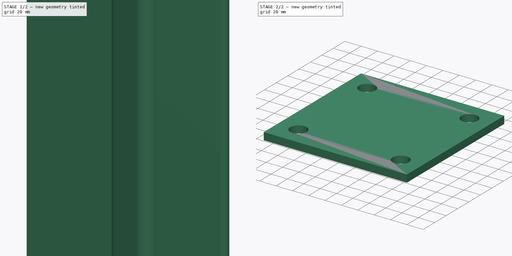
[diagram: build sequence overview — one tinted view per stage of 2, left to right]
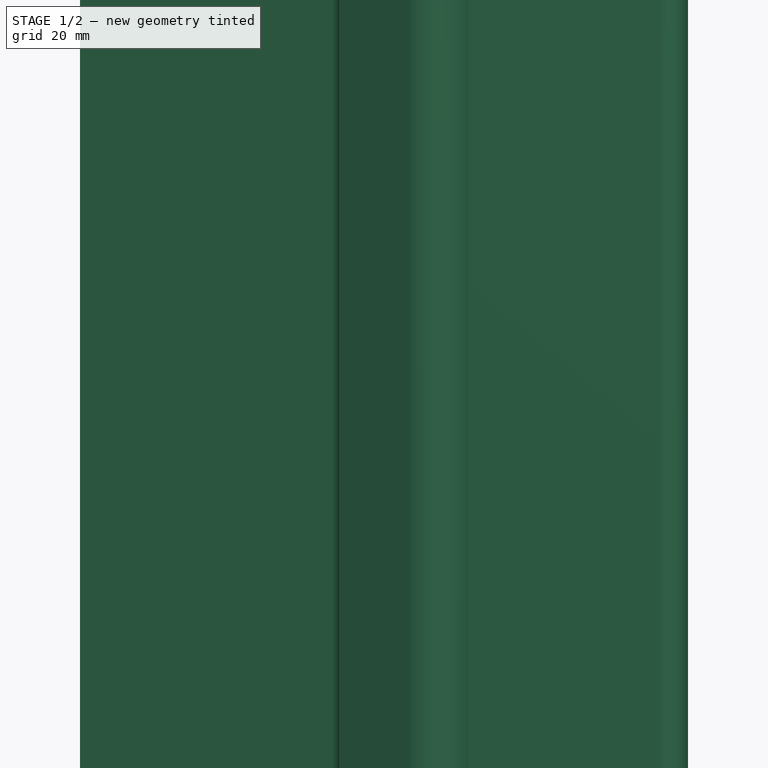
[diagram: stage 1 of 2 — iso view after this stage's code; geometry added in this stage tinted green]
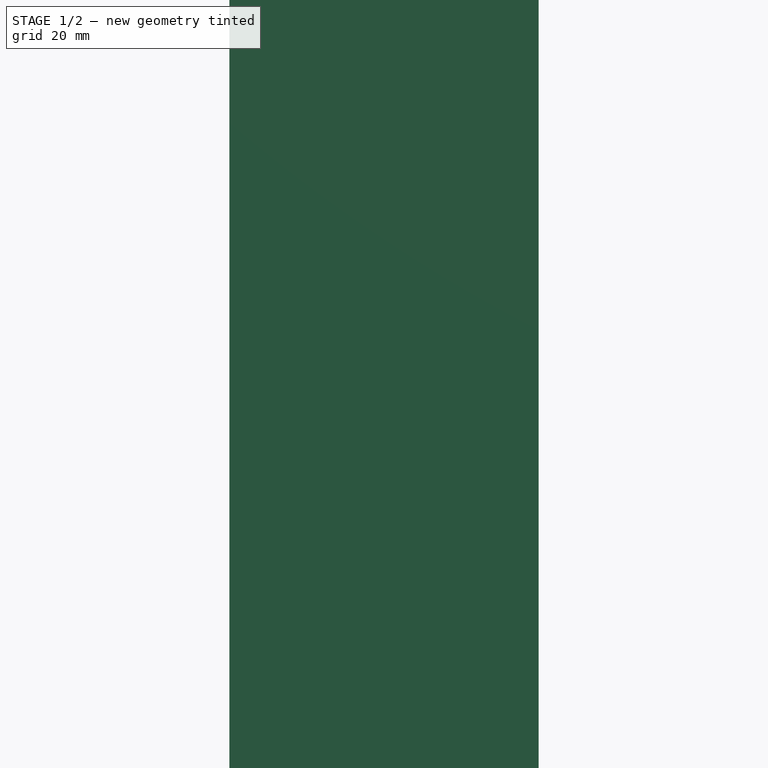
[diagram: stage 1 of 2 — front view after this stage's code; geometry added in this stage tinted green]
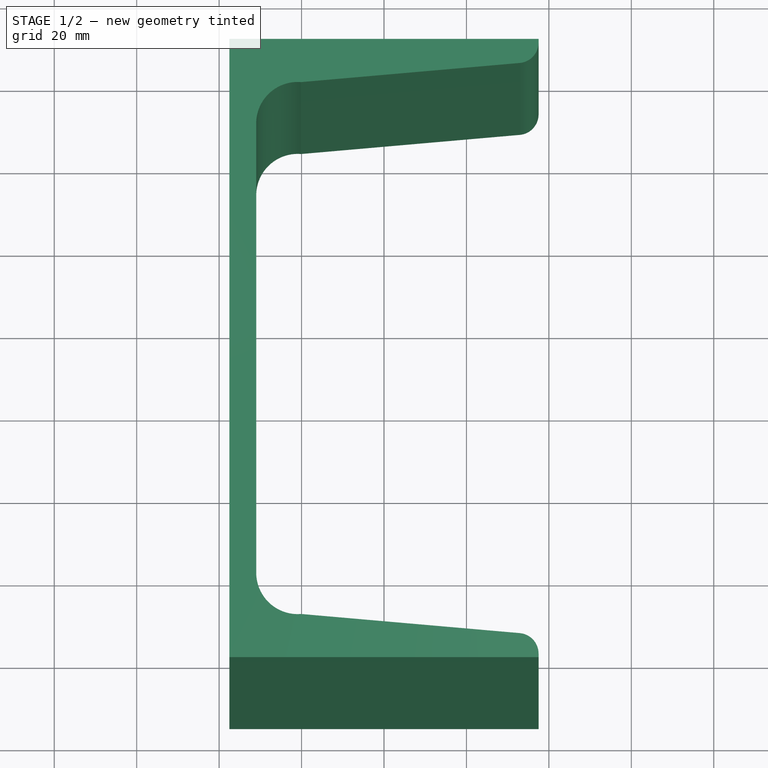
[diagram: stage 1 of 2 — top view after this stage's code; geometry added in this stage tinted green]
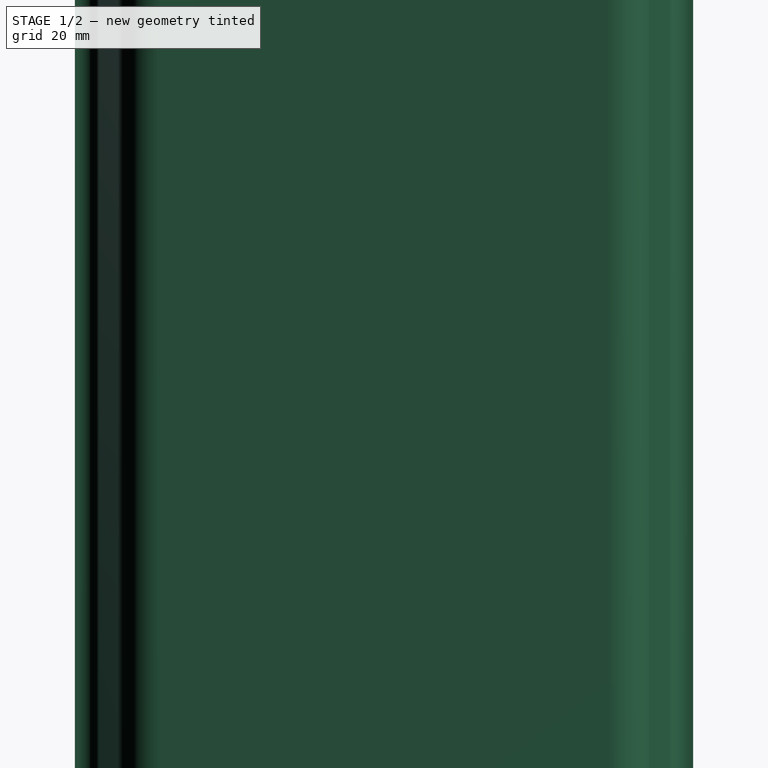
[diagram: stage 1 of 2 — right view after this stage's code; geometry added in this stage tinted green]
FCSTD DOCUMENT  (FreeCAD 1.0R39319 (Git))
Label: 03_Pst_C
License: All rights reserved
objects: Part::FeaturePython×1, Sketcher::SketchObject×1, PartDesign::Pad×1, App::Part×1
note: 6 computed .brp shape members not serialized (recipe doc carries the construction recipe); baked Part::Feature solids carry a one-line shape summary decoded from their .brp

FEATURE [Part::FeaturePython] ChannelSteel  # WARN: FeaturePython — macro-defined, semantics opaque (R4)
  B = 75
  H = 150
  L = 1000
  Placement = pos=(0,0,0) rot=(1,0,0;1.5708rad)
  Solid = true
  g0 = 7.85
  mass = 16.9049
  size = 3
  standard = SS
  t1 = 6.5
  t2 = 10
  type = 01_Channel
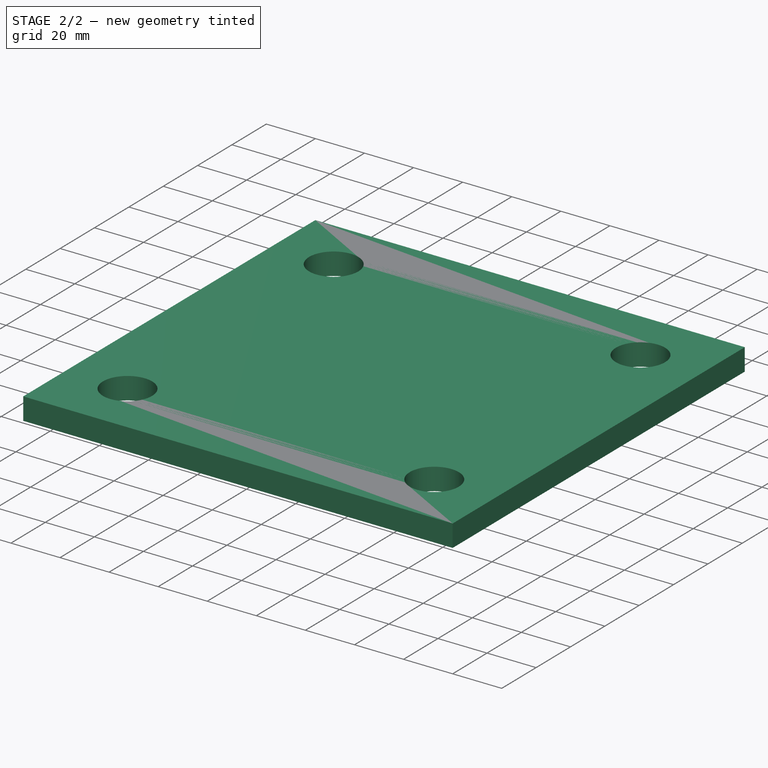
[diagram: stage 2 of 2 — iso view after this stage's code; geometry added in this stage tinted green]
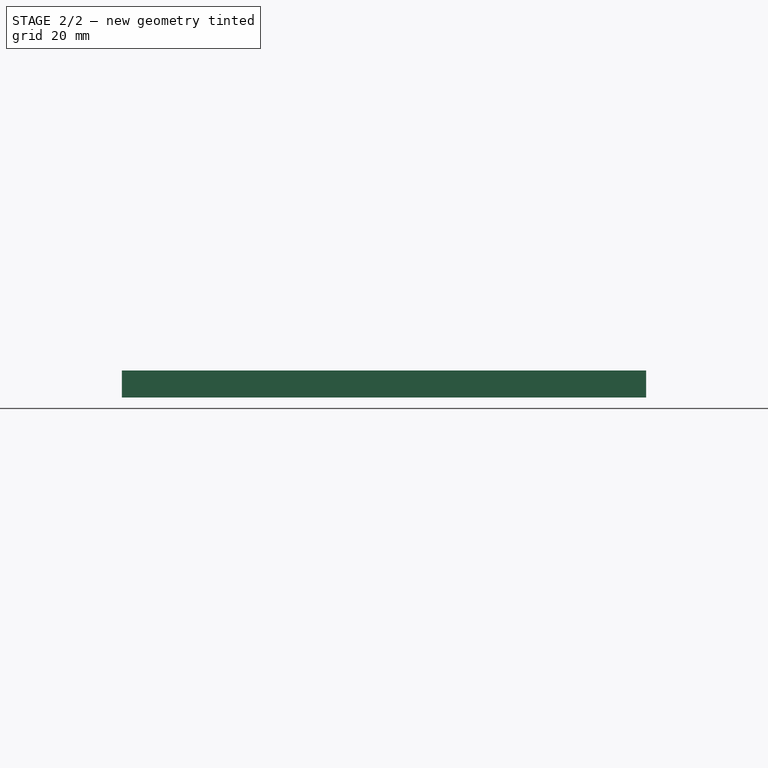
[diagram: stage 2 of 2 — front view after this stage's code; geometry added in this stage tinted green]
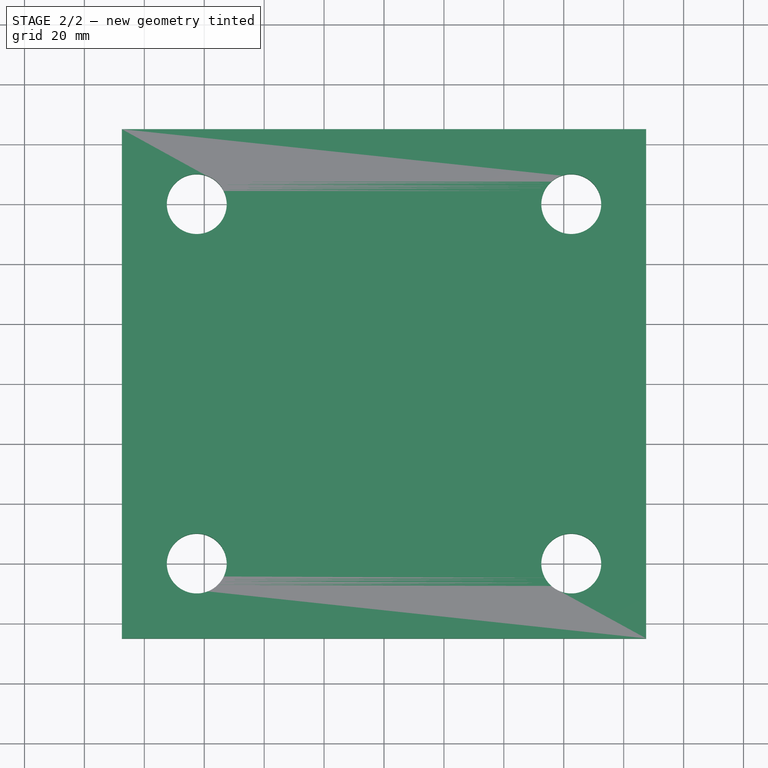
[diagram: stage 2 of 2 — top view after this stage's code; geometry added in this stage tinted green]
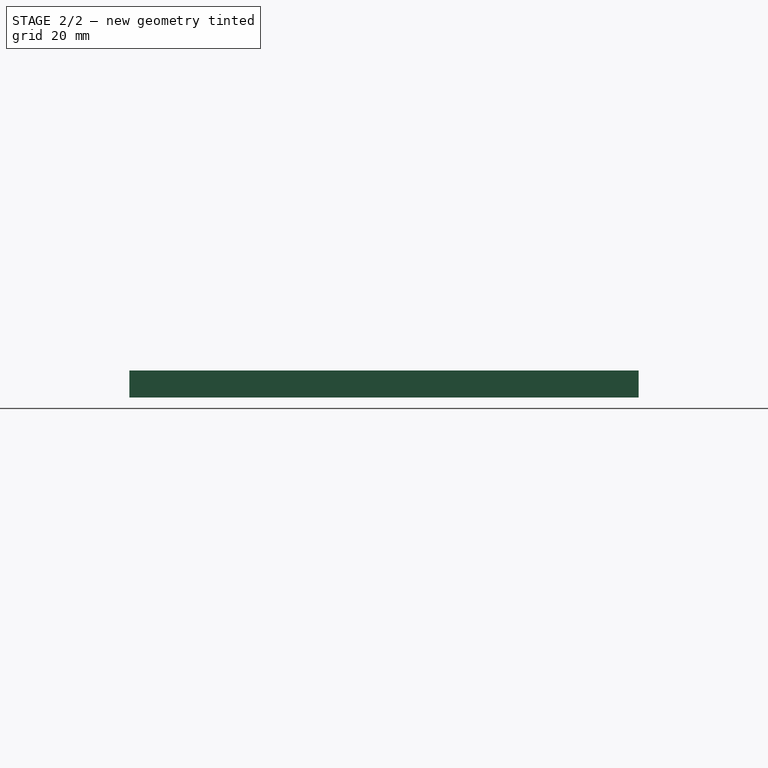
[diagram: stage 2 of 2 — right view after this stage's code; geometry added in this stage tinted green]
FEATURE [Sketcher::SketchObject] Sketch
  ArcFitTolerance = 1e-06
  AttachmentSupport = -> [ChannelSteel]
  ExternalGeometry = -> [ChannelSteel]
  FullyConstrained = true
  MakeInternals = false
  MapMode = 5
  Placement = pos=(0,0,0) rot=(1,0,0;3.14159rad)
  sketch-geometry (8):
    g0: LineSegment StartX=-87.5 StartY=-85 StartZ=0 EndX=87.5 EndY=-85 EndZ=0
    g1: LineSegment StartX=87.5 StartY=-85 StartZ=0 EndX=87.5 EndY=85 EndZ=0
    g2: LineSegment StartX=87.5 StartY=85 StartZ=0 EndX=-87.5 EndY=85 EndZ=0
    g3: LineSegment StartX=-87.5 StartY=85 StartZ=0 EndX=-87.5 EndY=-85 EndZ=0
    g4: Circle CenterX=-62.5 CenterY=-60 CenterZ=0 NormalX=0 NormalY=0 NormalZ=1 AngleXU=0 Radius=10
    g5: Circle CenterX=-62.5 CenterY=60 CenterZ=0 NormalX=0 NormalY=0 NormalZ=1 AngleXU=0 Radius=10
    g6: Circle CenterX=62.5 CenterY=60 CenterZ=0 NormalX=0 NormalY=0 NormalZ=1 AngleXU=0 Radius=10
    g7: Circle CenterX=62.5 CenterY=-60 CenterZ=0 NormalX=0 NormalY=0 NormalZ=1 AngleXU=0 Radius=10
  constraints (24):
    c: Coincident(g0,g1)
    c: Coincident(g1,g2)
    c: Coincident(g2,g3)
    c: Coincident(g3,g0)
    c: Horizontal(g0)
    c: Horizontal(g2)
    c: Vertical(g1)
    c: Vertical(g3)
    c: Distance(g-4,g1) = 50
    c: Distance(g-4,g3) = 50
    c: Diameter(g5) = 20
    c: DistanceX(g2,g5) = 25
    c: Distance(g5,g2) = 25
    c: Horizontal(g5,g6)
    c: Vertical(g5,g4)
    c: Vertical(g6,g7)
    c: Distance(g4,g0) = 25
    c: Horizontal(g4,g7)
    c: Equal(g5,g4)
    c: Equal(g4,g7)
    c: Equal(g7,g6)
    c: Distance(g6,g1) = 25
    c: DistanceY(g-3,g1) = 10
    c: DistanceY(g0,g-4) = 10
FEATURE [PartDesign::Pad] Pad  label="plt"
  Direction = (0,0,-1)
  Length = 9
  Length2 = 10
  Placement = pos=(0,0,0) rot=(1,0,0;1.5708rad)
  Profile = -> Sketch
  ReferenceAxis = -> Sketch [N_Axis]
  Refine = true
  Suppressed = false
  Type = 0
FEATURE [App::Part] Part  label="Pst_C"
  Group = -> [ChannelSteel,Sketch,Pad]
  JPN = 支柱
  Origin = -> Origin001
  Standard = C150x75x6 , H=1000
  count = 1
  g0 = 7.85
  mass = 18.7658
  material = SS41
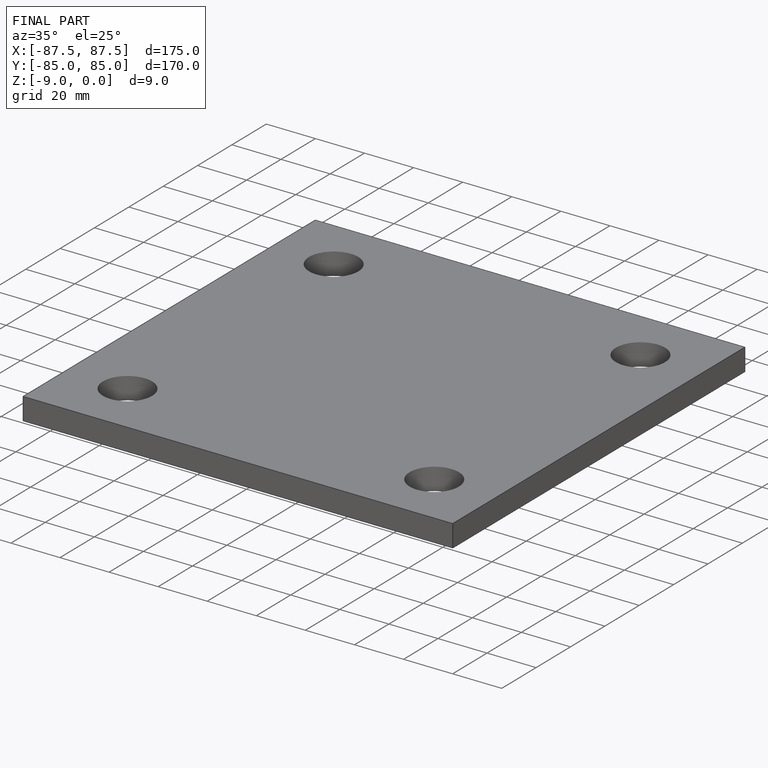
[diagram: finished part — iso view with bounding-box wireframe]
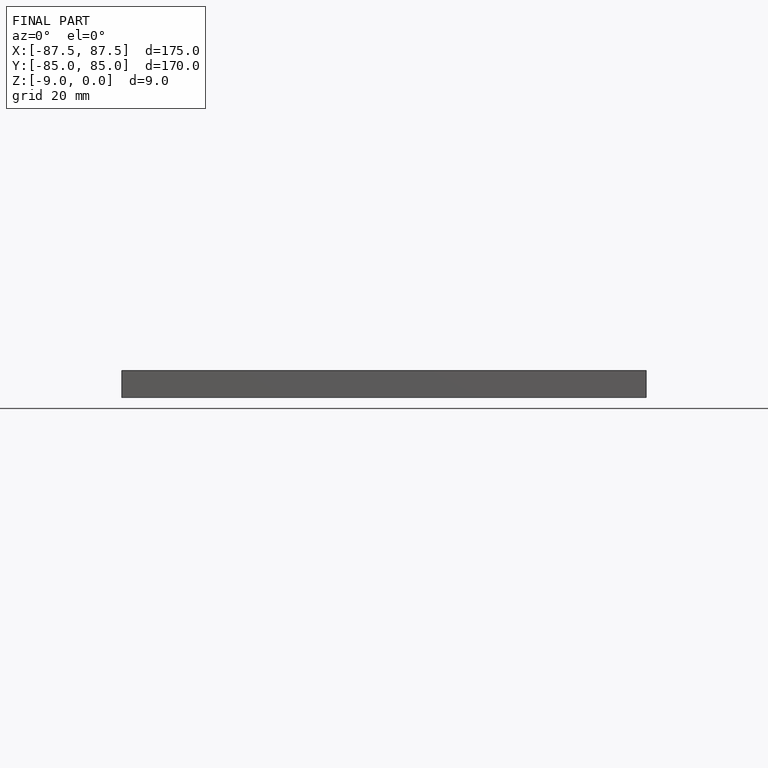
[diagram: finished part — front view with bounding-box wireframe]
